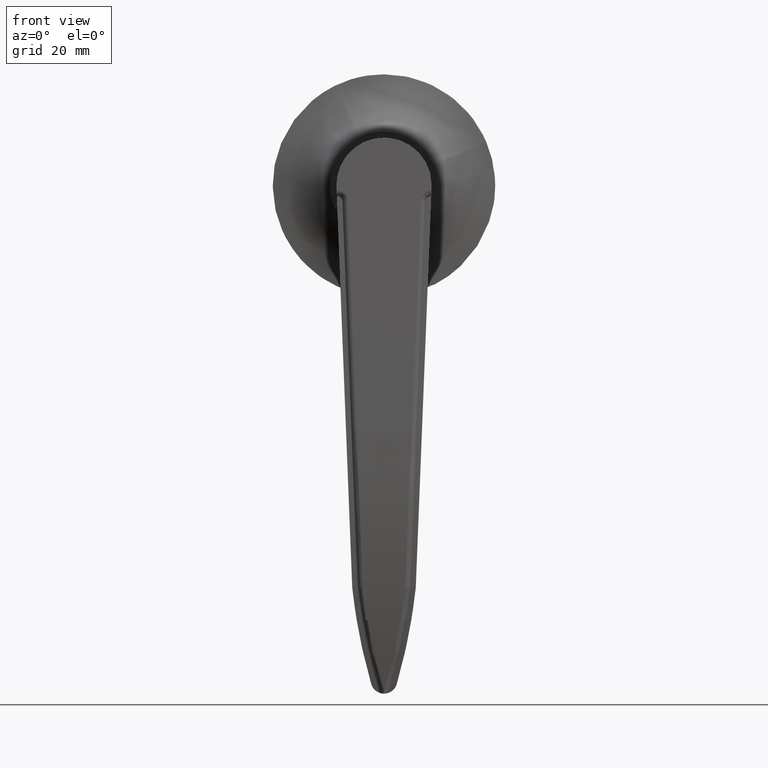
[diagram: clean part render]
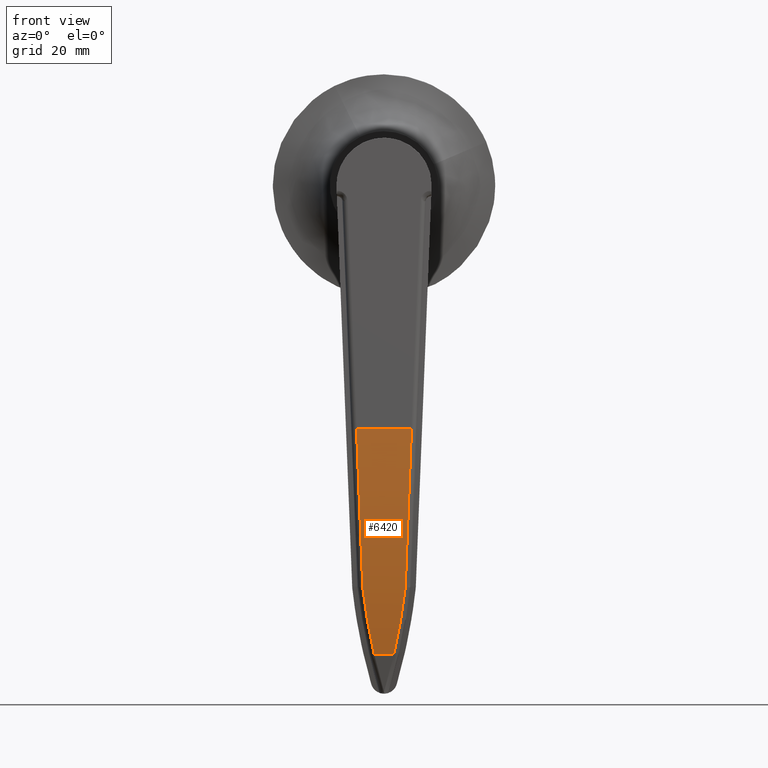
[diagram: same view with one face highlighted and labeled with its STEP entity id]
A machine part, front view. The second image highlights one B-rep face of the part: STEP entity #6420.
In plain terms, the highlighted face is a freeform B-spline surface patch.
Its self-contained STEP definition (entity closure, byte-faithful):
#4255=CARTESIAN_POINT('',(-25.074281457268100,1.832257648148430,-88.559382581957507));
#4256=VERTEX_POINT('',#4255);
#4267=CARTESIAN_POINT('',(-25.192150473231351,1.917785153496765,-88.188218284636804));
#4268=VERTEX_POINT('',#4267);
#4269=CARTESIAN_POINT('',(-25.192150473231351,1.917785153496765,-88.188218284636804));
#4270=CARTESIAN_POINT('',(-25.074281457268100,1.832257648148430,-88.559382581957507));
#4271=QUASI_UNIFORM_CURVE('',1,(#4269,#4270),.UNSPECIFIED.,.F.,.U.);
#4272=EDGE_CURVE('',#4268,#4256,#4271,.T.);
#4362=CARTESIAN_POINT('',(-28.464928260952249,4.010739206611820,-75.922473122664499));
#4363=VERTEX_POINT('',#4362);
#4364=CARTESIAN_POINT('',(-28.464928260952249,4.010739206611820,-75.922473122664499));
#4365=CARTESIAN_POINT('',(-27.551446740751359,3.540713900414393,-80.089946605543730));
#4366=CARTESIAN_POINT('',(-26.457023902438362,2.840853177092069,-84.191809476401687));
#4367=CARTESIAN_POINT('',(-25.192150473231351,1.917785153496765,-88.188218284636804));
#4368=B_SPLINE_CURVE_WITH_KNOTS('',3,(#4364,#4365,#4366,#4367),.UNSPECIFIED.,.F.,.U.,(4,4),(7.220198E-010,12.876678003448211),.UNSPECIFIED.);
#4369=EDGE_CURVE('',#4363,#4268,#4368,.T.);
#4496=CARTESIAN_POINT('',(-31.699999999999999,5.183452776781171,-46.0));
#4497=VERTEX_POINT('',#4496);
#4519=CARTESIAN_POINT('',(-31.699999999999999,5.183452776781171,-46.0));
#4520=CARTESIAN_POINT('',(-31.700070187593020,5.004949094756684,-50.554625923621728));
#4521=CARTESIAN_POINT('',(-31.209058693374470,4.611010614786747,-60.606196809065032));
#4522=CARTESIAN_POINT('',(-29.639988533691341,4.221202784923627,-70.552371739406325));
#4523=CARTESIAN_POINT('',(-28.464928260952249,4.010739206611820,-75.922473122664499));
#4524=B_SPLINE_CURVE_WITH_KNOTS('',3,(#4519,#4520,#4521,#4522,#4523),.UNSPECIFIED.,.F.,.U.,(4,1,4),(1.352166E-009,13.674368474746609,30.177913903808360),.UNSPECIFIED.);
#4525=EDGE_CURVE('',#4497,#4363,#4524,.T.);
#4691=CARTESIAN_POINT('',(-25.074281457268100,-1.832195364618650,-88.559382581957507));
#4692=VERTEX_POINT('',#4691);
#4712=CARTESIAN_POINT('',(-25.192153318660250,-1.917724963730105,-88.188209281116698));
#4713=VERTEX_POINT('',#4712);
#4724=CARTESIAN_POINT('',(-25.074281457268100,-1.832195364618650,-88.559382581957507));
#4725=CARTESIAN_POINT('',(-25.192153318660250,-1.917724963730105,-88.188209281116698));
#4726=QUASI_UNIFORM_CURVE('',1,(#4724,#4725),.UNSPECIFIED.,.F.,.U.);
#4727=EDGE_CURVE('',#4692,#4713,#4726,.T.);
#4792=CARTESIAN_POINT('',(-28.464927962925049,-4.010678324561600,-75.922474484840293));
#4793=VERTEX_POINT('',#4792);
#4804=CARTESIAN_POINT('',(-25.192153318660250,-1.917724963730105,-88.188209281116698));
#4805=CARTESIAN_POINT('',(-26.457246950659979,-2.841688672985698,-84.192057289848648));
#4806=CARTESIAN_POINT('',(-27.551696655684200,-3.541571871990102,-80.090125621235018));
#4807=CARTESIAN_POINT('',(-28.464927962925049,-4.010678324561600,-75.922474484840293));
#4808=B_SPLINE_CURVE_WITH_KNOTS('',3,(#4804,#4805,#4806,#4807),.UNSPECIFIED.,.F.,.U.,(4,4),(7.300063E-010,12.876729147457199),.UNSPECIFIED.);
#4809=EDGE_CURVE('',#4713,#4793,#4808,.T.);
#4928=CARTESIAN_POINT('',(-31.699999999999999,-5.183391743828940,-46.0));
#4929=VERTEX_POINT('',#4928);
#4940=CARTESIAN_POINT('',(-28.464927962925049,-4.010678324561600,-75.922474484840293));
#4941=CARTESIAN_POINT('',(-30.614062403076080,-4.395524014884940,-66.102909738582667));
#4942=CARTESIAN_POINT('',(-31.701281368086342,-4.789448344737894,-56.051698150719261));
#4943=CARTESIAN_POINT('',(-31.699999999999999,-5.183391743828940,-46.0));
#4944=B_SPLINE_CURVE_WITH_KNOTS('',3,(#4940,#4941,#4942,#4943),.UNSPECIFIED.,.F.,.U.,(4,4),(1.352866E-009,30.177915104327958),.UNSPECIFIED.);
#4945=EDGE_CURVE('',#4793,#4929,#4944,.T.);
#6382=CARTESIAN_POINT('',(-25.074281457268100,1.832257648148430,-88.559382581957507));
#6383=CARTESIAN_POINT('',(-25.074281457268100,-1.832195364618650,-88.559382581957507));
#6384=QUASI_UNIFORM_CURVE('',1,(#6382,#6383),.UNSPECIFIED.,.F.,.U.);
#6385=EDGE_CURVE('',#4256,#4692,#6384,.T.);
#6392=CARTESIAN_POINT('',(-31.683519868857676,-5.442562856844194,-43.851939217546892));
#6393=CARTESIAN_POINT('',(-31.683519868857676,5.449103167621805,-43.851939217546892));
#6394=CARTESIAN_POINT('',(-32.051806948723225,-5.442562856844194,-67.852247860081278));
#6395=CARTESIAN_POINT('',(-32.051806948723225,5.449103167621805,-67.852247860081278));
#6396=CARTESIAN_POINT('',(-24.404317483454864,-5.442562856844194,-90.604530277208468));
#6397=CARTESIAN_POINT('',(-24.404317483454864,5.449103167621805,-90.604530277208468));
#6405=(BOUNDED_SURFACE()B_SPLINE_SURFACE(1,2,((#6392,#6394,#6396),(#6393,#6395,#6397)),.UNSPECIFIED.,.F.,.F.,.U.)B_SPLINE_SURFACE_WITH_KNOTS((2,2),(3,3),(0.0,10.891666024466000),(0.0,47.658557796460592),.UNSPECIFIED.)GEOMETRIC_REPRESENTATION_ITEM()RATIONAL_B_SPLINE_SURFACE(((0.998986738180389,0.983669245781725,0.997058638134269),(0.998986738180389,0.983669245781725,0.997058638134269)))REPRESENTATION_ITEM('')SURFACE());
#6406=ORIENTED_EDGE('',*,*,#4369,.T.);
#6407=ORIENTED_EDGE('',*,*,#4272,.T.);
#6408=ORIENTED_EDGE('',*,*,#6385,.T.);
#6409=ORIENTED_EDGE('',*,*,#4727,.T.);
#6410=ORIENTED_EDGE('',*,*,#4809,.T.);
#6411=ORIENTED_EDGE('',*,*,#4945,.T.);
#6412=CARTESIAN_POINT('',(-31.699999999999999,5.183452776781171,-46.0));
#6413=CARTESIAN_POINT('',(-31.699999999999999,-5.183391743828940,-46.0));
#6414=QUASI_UNIFORM_CURVE('',1,(#6412,#6413),.UNSPECIFIED.,.F.,.U.);
#6415=EDGE_CURVE('',#4497,#4929,#6414,.T.);
#6416=ORIENTED_EDGE('',*,*,#6415,.F.);
#6417=ORIENTED_EDGE('',*,*,#4525,.T.);
#6418=EDGE_LOOP('',(#6406,#6407,#6408,#6409,#6410,#6411,#6416,#6417));
#6419=FACE_OUTER_BOUND('',#6418,.T.);
#6420=ADVANCED_FACE('',(#6419),#6405,.T.);